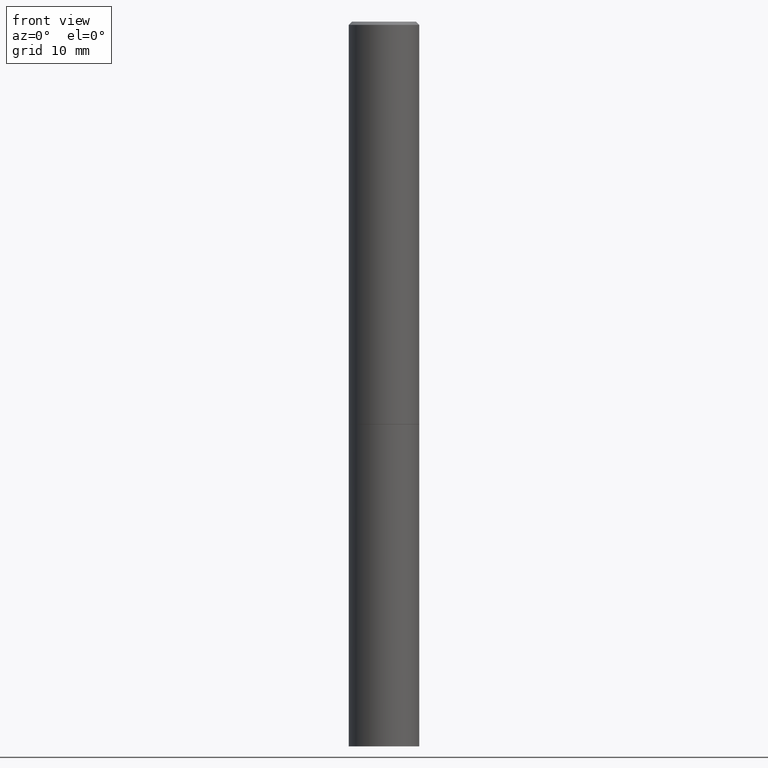
[diagram: clean part render]
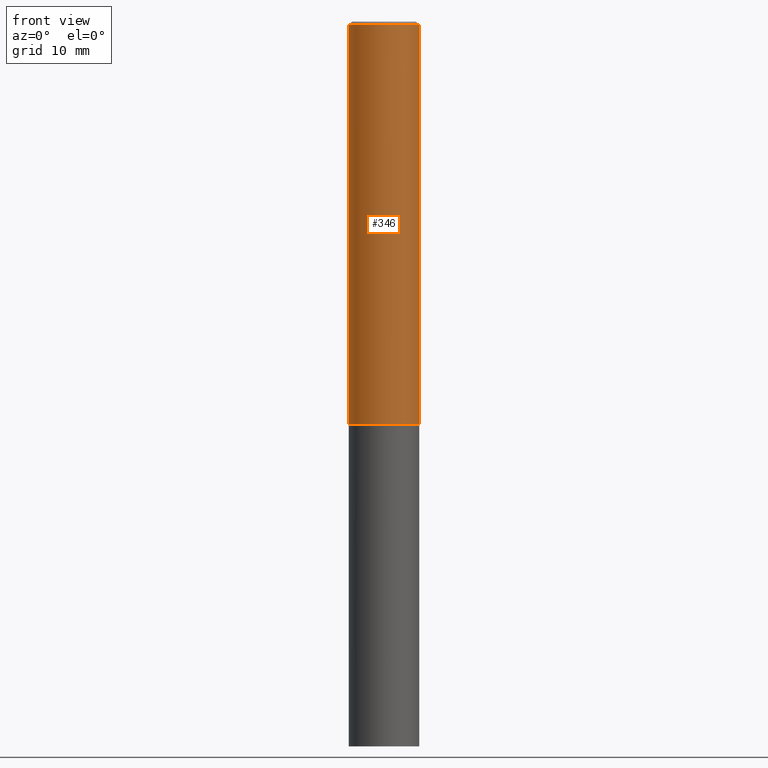
[diagram: same view with one face highlighted and labeled with its STEP entity id]
A machine part, front view. The second image highlights one B-rep face of the part: STEP entity #346.
In plain terms, the highlighted cylindrical surface (edge-blend (fillet) strip) has radius 5.5562 mm, axis along (-0, 0, 1).
Its self-contained STEP definition (entity closure, byte-faithful):
#3 = CYLINDRICAL_SURFACE ( 'NONE', #287, 0.2187499999999998057 ) ;
#6 = CARTESIAN_POINT ( 'NONE',  ( 0.2187499999999996947, -1.570563563789383264E-15, -0.02000000000000003164 ) ) ;
#17 = ORIENTED_EDGE ( 'NONE', *, *, #275, .F. ) ;
#19 = EDGE_CURVE ( 'NONE', #369, #318, #201, .T. ) ;
#35 = VERTEX_POINT ( 'NONE', #179 ) ;
#46 = DIRECTION ( 'NONE',  ( -2.445468806185136597E-29, 3.491481338843145583E-15, 1.000000000000000000 ) ) ;
#76 = CARTESIAN_POINT ( 'NONE',  ( 4.890937612370280165E-31, -6.982962677686301470E-17, -0.02000000000000003164 ) ) ;
#83 = CARTESIAN_POINT ( 'NONE',  ( -0.2187499999999998057, 1.554312234475217776E-15, -1.076017050993259781E-29 ) ) ;
#87 = CARTESIAN_POINT ( 'NONE',  ( 0.000000000000000000, 0.000000000000000000, 0.000000000000000000 ) ) ;
#95 = VECTOR ( 'NONE', #333, 39.37007874015748143 ) ;
#107 = EDGE_CURVE ( 'NONE', #323, #35, #227, .T. ) ;
#120 = ORIENTED_EDGE ( 'NONE', *, *, #107, .T. ) ;
#136 = ORIENTED_EDGE ( 'NONE', *, *, #19, .F. ) ;
#138 = EDGE_LOOP ( 'NONE', ( #17, #120, #300, #136 ) ) ;
#146 = LINE ( 'NONE', #83, #148 ) ;
#148 = VECTOR ( 'NONE', #379, 39.37007874015748143 ) ;
#150 = CARTESIAN_POINT ( 'NONE',  ( 0.2187499999999998057, -1.527523085743869462E-15, 1.066663669705360184E-29 ) ) ;
#152 = FACE_OUTER_BOUND ( 'NONE', #138, .T. ) ;
#158 = LINE ( 'NONE', #150, #95 ) ;
#167 = DIRECTION ( 'NONE',  ( 1.000000000000000000, -6.982962677686265922E-15, 0.000000000000000000 ) ) ;
#179 = CARTESIAN_POINT ( 'NONE',  ( 0.2187500000000000000, -1.025273495151289515E-14, -2.499000000000000998 ) ) ;
#191 = CARTESIAN_POINT ( 'NONE',  ( 6.111226546656659252E-29, -8.725211865769023513E-15, -2.499000000000000998 ) ) ;
#201 = CIRCLE ( 'NONE', #378, 0.2187499999999996947 ) ;
#208 = CARTESIAN_POINT ( 'NONE',  ( -0.2187499999999996947, 1.457693458967005573E-15, -0.02000000000000003164 ) ) ;
#227 = CIRCLE ( 'NONE', #387, 0.2187500000000000000 ) ;
#235 = CARTESIAN_POINT ( 'NONE',  ( -0.2187500000000000278, -2.843208511797721488E-15, -2.499000000000000998 ) ) ;
#254 = DIRECTION ( 'NONE',  ( -2.445468806185136597E-29, 3.491481338843145583E-15, 1.000000000000000000 ) ) ;
#273 = DIRECTION ( 'NONE',  ( 1.000000000000000000, -6.982962677686266711E-15, 4.876176775795936353E-29 ) ) ;
#275 = EDGE_CURVE ( 'NONE', #323, #369, #146, .T. ) ;
#287 = AXIS2_PLACEMENT_3D ( 'NONE', #87, #303, #273 ) ;
#300 = ORIENTED_EDGE ( 'NONE', *, *, #334, .T. ) ;
#303 = DIRECTION ( 'NONE',  ( -2.445468806185136597E-29, 3.491481338843145583E-15, 1.000000000000000000 ) ) ;
#318 = VERTEX_POINT ( 'NONE', #6 ) ;
#323 = VERTEX_POINT ( 'NONE', #235 ) ;
#333 = DIRECTION ( 'NONE',  ( -2.445468806185136877E-29, 3.491481338843145188E-15, 1.000000000000000000 ) ) ;
#334 = EDGE_CURVE ( 'NONE', #35, #318, #158, .T. ) ;
#346 = ADVANCED_FACE ( 'NONE', ( #152 ), #3, .T. ) ;
#369 = VERTEX_POINT ( 'NONE', #208 ) ;
#377 = DIRECTION ( 'NONE',  ( 1.000000000000000000, -6.982962677686267499E-15, 0.000000000000000000 ) ) ;
#378 = AXIS2_PLACEMENT_3D ( 'NONE', #76, #46, #167 ) ;
#379 = DIRECTION ( 'NONE',  ( -2.445468806185136877E-29, 3.491481338843145188E-15, 1.000000000000000000 ) ) ;
#387 = AXIS2_PLACEMENT_3D ( 'NONE', #191, #254, #377 ) ;